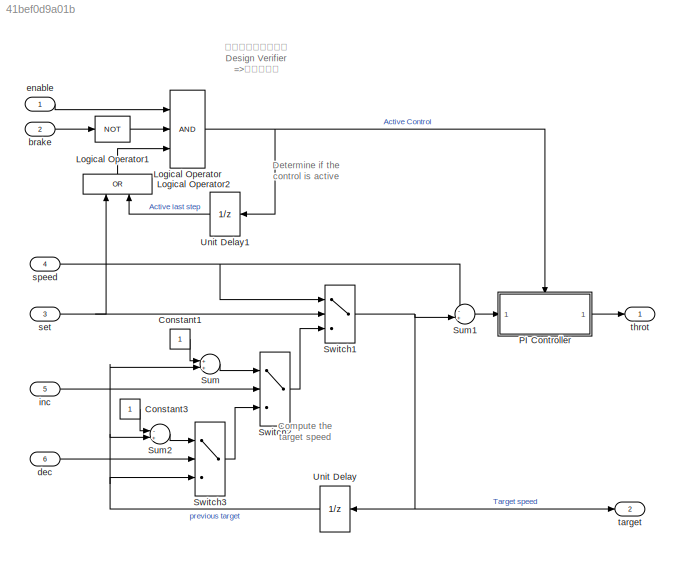
MODEL slx_41bef0d9a01b
KIND model
BLOCK [Constant] Constant1
BLOCK [Constant] Constant3
BLOCK [Logic] Logical Operator
  AllPortsSameDT = off
  Inputs = 3
  OutDataTypeStr = boolean
  Ports = [3, 1]
BLOCK [Logic] Logical Operator1
  AllPortsSameDT = off
  Operator = NOT
  OutDataTypeStr = boolean
  Ports = [1, 1]
BLOCK [Logic] Logical Operator2
  AllPortsSameDT = off
  Operator = OR
  OutDataTypeStr = boolean
  Ports = [2, 1]
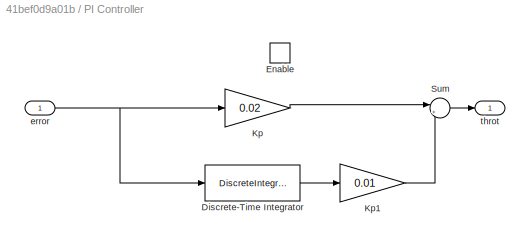
BLOCK [SubSystem] PI Controller
  Ports = [1, 1, 1]
  RequestExecContextInheritance = off
BLOCK [DiscreteIntegrator] PI Controller/Discrete-Time Integrator
  LimitOutput = on
  LowerSaturationLimit = -5
  Ports = [1, 1]
  SampleTime = 0.01
  UpperSaturationLimit = 5
BLOCK [EnablePort] PI Controller/Enable
  Ports = []
BLOCK [Gain] PI Controller/Kp
  Gain = 0.02
  OutDataTypeStr = Inherit: Inherit via internal rule
  ParamDataTypeStr = Inherit: Inherit via internal rule
  SaturateOnIntegerOverflow = off
BLOCK [Gain] PI Controller/Kp1
  Gain = 0.01
  OutDataTypeStr = Inherit: Inherit via internal rule
  ParamDataTypeStr = Inherit: Inherit via internal rule
  SaturateOnIntegerOverflow = off
BLOCK [Sum] PI Controller/Sum
  IconShape = round
  InputSameDT = off
  Inputs = |++
  OutDataTypeStr = Inherit: Inherit via internal rule
  Ports = [2, 1]
  SaturateOnIntegerOverflow = off
BLOCK [Inport] PI Controller/error
  IconDisplay = Port number
BLOCK [Outport] PI Controller/throt
  IconDisplay = Port number
  InitialOutput = 0
BLOCK [Sum] Sum
  IconShape = round
  InputSameDT = off
  Inputs = ++|
  OutDataTypeStr = Inherit: Inherit via internal rule
  Ports = [2, 1]
  SaturateOnIntegerOverflow = off
BLOCK [Sum] Sum1
  IconShape = round
  InputSameDT = off
  Inputs = -+|
  OutDataTypeStr = Inherit: Inherit via internal rule
  Ports = [2, 1]
  SaturateOnIntegerOverflow = off
BLOCK [Sum] Sum2
  IconShape = round
  InputSameDT = off
  Inputs = -+|
  OutDataTypeStr = Inherit: Inherit via internal rule
  Ports = [2, 1]
  SaturateOnIntegerOverflow = off
BLOCK [Switch] Switch1
  Criteria = u2 ~= 0
  InputSameDT = off
  SaturateOnIntegerOverflow = off
BLOCK [Switch] Switch2
  Criteria = u2 ~= 0
  InputSameDT = off
  SaturateOnIntegerOverflow = off
BLOCK [Switch] Switch3
  Criteria = u2 ~= 0
  InputSameDT = off
  SaturateOnIntegerOverflow = off
BLOCK [UnitDelay] Unit Delay
  SampleTime = 0.01
BLOCK [UnitDelay] Unit Delay1
  SampleTime = 0.01
BLOCK [Inport] brake
  IconDisplay = Port number
  OutDataTypeStr = boolean
  Port = 2
BLOCK [Inport] dec
  IconDisplay = Port number
  OutDataTypeStr = boolean
  Port = 6
BLOCK [Inport] enable
  IconDisplay = Port number
  OutDataTypeStr = boolean
BLOCK [Inport] inc
  IconDisplay = Port number
  OutDataTypeStr = boolean
  Port = 5
BLOCK [Inport] set
  IconDisplay = Port number
  OutDataTypeStr = boolean
  Port = 3
BLOCK [Inport] speed
  IconDisplay = Port number
  OutDataTypeStr = double
  Port = 4
BLOCK [Outport] target
  IconDisplay = Port number
  Port = 2
BLOCK [Outport] throt
  IconDisplay = Port number
ANNOTATION (root): Compute the target speed
ANNOTATION (root): Determine if the control is active
ANNOTATION (root): ツールメニューから Design Verifier =>テスト生成
LINE Constant1:1 -> Sum:1
LINE Constant3:1 -> Sum2:1
LINE Logical Operator1:1 -> Logical Operator:2
LINE Logical Operator2:1 -> Logical Operator:3
NET Logical Operator:1 -> PI Controller:enable, Unit Delay1:1
LINE PI Controller/Discrete-Time Integrator:1 -> PI Controller/Kp1:1
LINE PI Controller/Kp1:1 -> PI Controller/Sum:2
LINE PI Controller/Kp:1 -> PI Controller/Sum:1
LINE PI Controller/Sum:1 -> PI Controller/throt:1
NET PI Controller/error:1 -> PI Controller/Discrete-Time Integrator:1, PI Controller/Kp:1
LINE PI Controller:1 -> throt:1
LINE Sum1:1 -> PI Controller:1
LINE Sum2:1 -> Switch3:1
LINE Sum:1 -> Switch2:1
NET Switch1:1 -> Sum1:2, Unit Delay:1, target:1
LINE Switch2:1 -> Switch1:3
LINE Switch3:1 -> Switch2:3
LINE Unit Delay1:1 -> Logical Operator2:2
NET Unit Delay:1 -> Sum2:2, Sum:2, Switch3:3
LINE brake:1 -> Logical Operator1:1
LINE dec:1 -> Switch3:2
LINE enable:1 -> Logical Operator:1
LINE inc:1 -> Switch2:2
NET set:1 -> Logical Operator2:1, Switch1:2
NET speed:1 -> Sum1:1, Switch1:1
note: NET lines group one-source signal fan-out (src -> all destinations, sorted); 1:1 wires keep LINE
